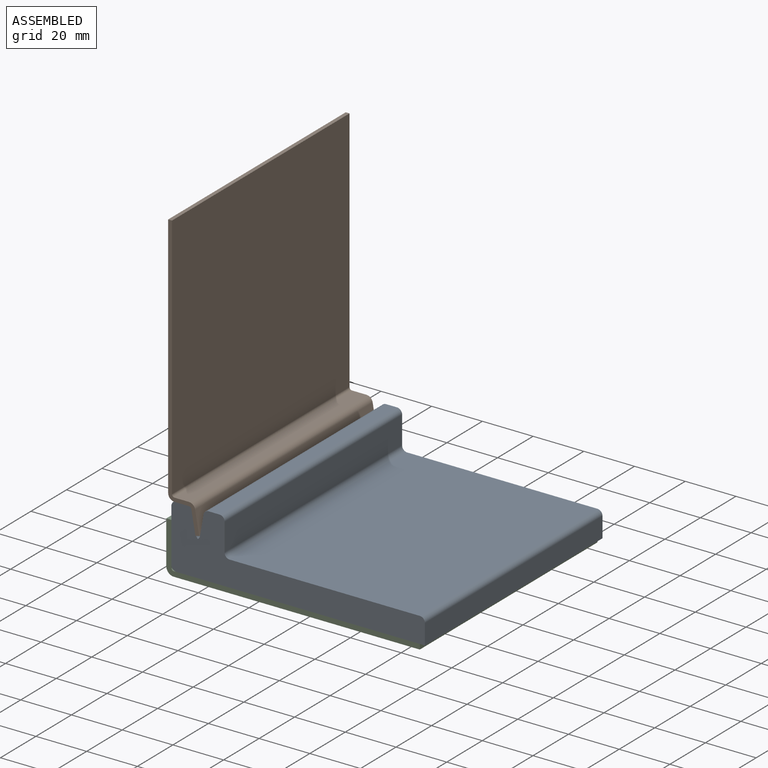
[diagram: assembled view]
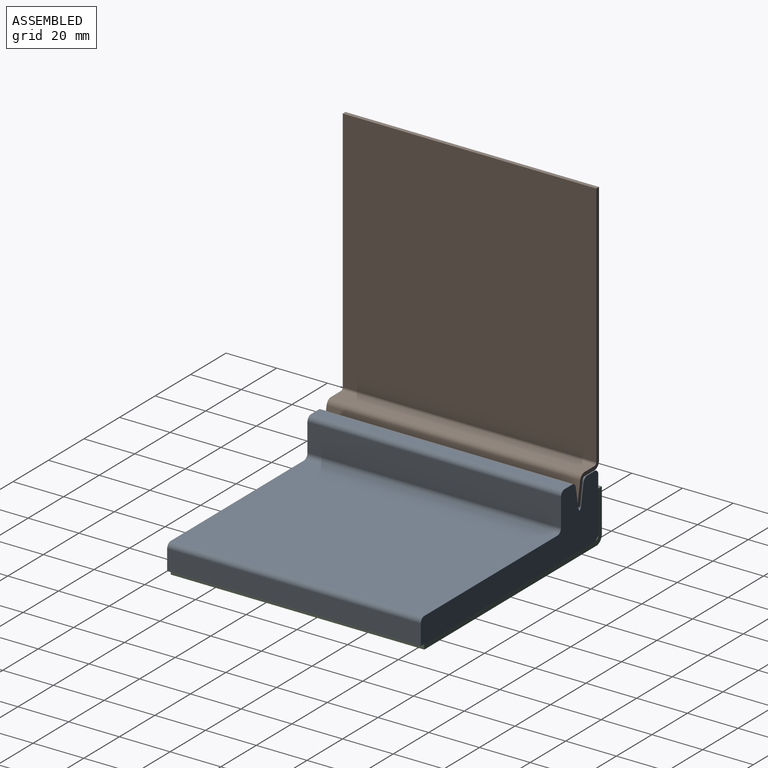
[diagram: assembled view, second angle]
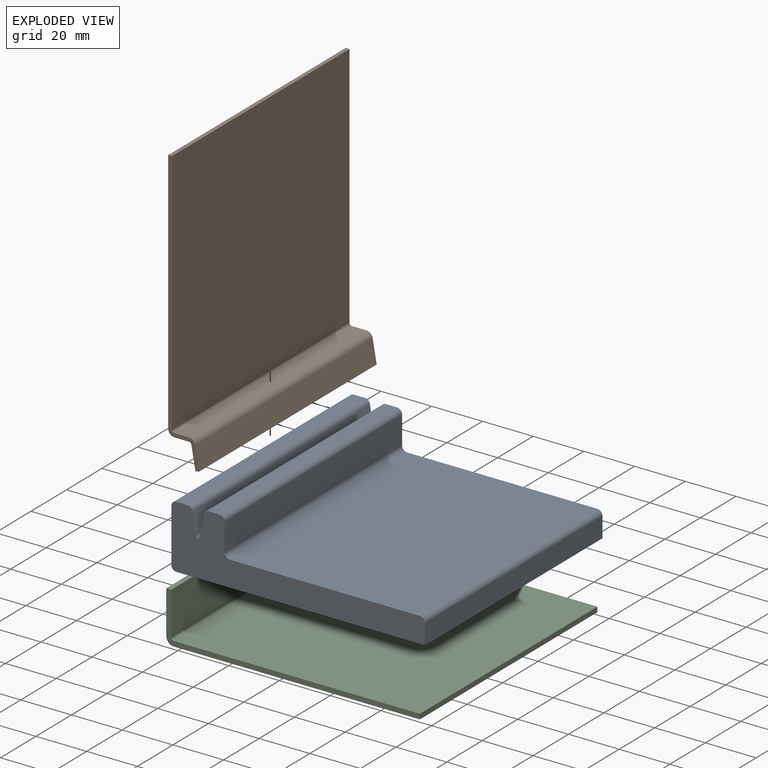
[diagram: exploded view]
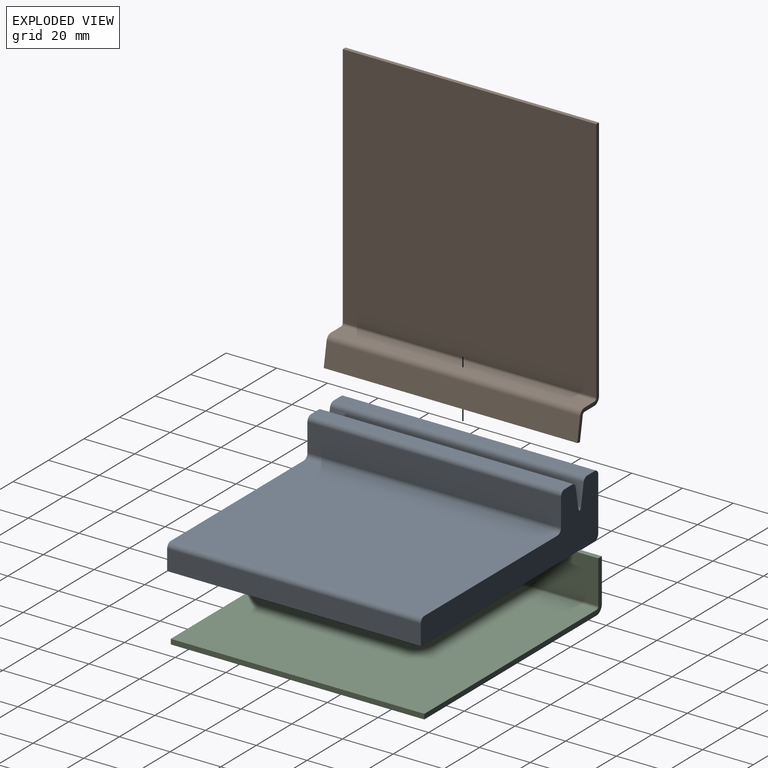
[diagram: exploded view, second angle]
ASSEMBLY  parts=3 mates=3
PART A: 20 faces, bbox 100x100x25 mm
  f0: plane 100x21mm, normal (-1,0,0), area 2100mm2, adj f9,f10,f11,f15
  f1: plane 100x98mm, normal (0,0,-1), area 9800mm2, adj f2,f9,f10,f11
  f2: plane 100x8mm, normal (1,0,0), area 800mm2, adj f1,f9,f10,f12
  f3: plane 100x75mm, normal (0,0,1), area 7500mm2, adj f9,f10,f12,f13
  f4: plane 100x11mm, normal (1,0,0), area 1100mm2, adj f9,f10,f13,f16
  f5: plane 100x4.32mm, normal (0,0,1), area 432.2mm2, adj f9,f10,f16,f17
  f6: plane 100x8.04mm, normal (-0.98,0,0.17), area 816.1mm2, adj f9,f10,f17,f19
  f7: plane 100x8.04mm, normal (0.98,0,0.17), area 816.1mm2, adj f9,f10,f14,f18
  f8: plane 100x4.32mm, normal (0,0,1), area 432.2mm2, adj f9,f10,f14,f15
  f9: plane 100x25mm, normal (0,-1,0), area 1278.1mm2, adj f0,f1,f2,f3,f4,f5,f6,f7
  f10: plane 100x25mm, normal (0,1,0), area 1278.1mm2, adj f0,f1,f2,f3,f4,f5,f6,f7
  f11: cylinder r=2mm len=100mm, axis (0,-1,0), area 314.2mm2, adj f0,f1,f9,f10
  f12: cylinder r=2mm len=100mm, axis (0,-1,0), area 314.2mm2, adj f2,f3,f9,f10
  f13: cylinder r=2mm len=100mm, axis (0,-1,0), area 314.2mm2, adj f3,f4,f9,f10
  f14: cylinder r=2mm len=100mm, axis (0,1,0), area 279.3mm2, adj f7,f8,f9,f10
  f15: cylinder r=2mm len=100mm, axis (0,1,0), area 314.2mm2, adj f0,f8,f9,f10
  f16: cylinder r=2mm len=100mm, axis (0,1,0), area 314.2mm2, adj f4,f5,f9,f10
  f17: cylinder r=2mm len=100mm, axis (0,1,0), area 279.3mm2, adj f5,f6,f9,f10
  f18: cylinder r=2mm len=100mm, axis (0,-1,0), area 153.3mm2, adj f7,f9,f10,f19
  f19: cylinder r=2mm len=100mm, axis (0,-1,0), area 153.3mm2, adj f6,f9,f10,f18
PART B: 22 faces, bbox 12.2x100x109.8 mm
  f0: plane 97.5x1.5mm, normal (0,1,0), area 146.2mm2, adj f1,f3,f4,f19
  f1: plane 100x1.5mm, normal (0,0,1), area 150mm2, adj f0,f2,f3,f4
  f2: plane 97.5x1.5mm, normal (0,-1,0), area 146.2mm2, adj f1,f3,f4,f18
  f3: plane 100x97.5mm, normal (1,0,0), area 9750mm2, adj f0,f1,f2,f21
  f4: plane 100x97.5mm, normal (-1,0,0), area 9750mm2, adj f0,f1,f2,f20
  f5: plane 5.66x1.5mm, normal (0,1,0), area 8.5mm2, adj f7,f8,f15,f19
  f6: plane 5.66x1.5mm, normal (0,-1,0), area 8.5mm2, adj f7,f8,f14,f18
  f7: plane 100x5.66mm, normal (0,0,1), area 566.1mm2, adj f5,f6,f16,f21
  f8: plane 100x5.66mm, normal (0,0,-1), area 566.1mm2, adj f5,f6,f17,f20
  f9: plane 9.28x3.07mm, normal (0,1,0), area 13.7mm2, adj f11,f12,f13,f15
  f10: plane 9.28x3.07mm, normal (0,-1,0), area 13.7mm2, adj f11,f12,f13,f14
  f11: plane 100x1.48mm, normal (0.17,0,-0.98), area 150mm2, adj f9,f10,f12,f13
  f12: plane 100x9.02mm, normal (0.98,0,0.17), area 916.1mm2, adj f9,f10,f11,f16
  f13: plane 100x9.02mm, normal (-0.98,0,-0.17), area 916.1mm2, adj f9,f10,f11,f17
  f14: plane 2.46x2.33mm, normal (0,-1,0), area 3.7mm2, adj f6,f10,f16,f17
  f15: plane 2.46x2.33mm, normal (0,1,0), area 3.7mm2, adj f5,f9,f16,f17
  f16: cylinder r=2.5mm len=100mm, axis (0,-1,0), area 349.1mm2, adj f7,f12,f14,f15
  f17: cylinder r=1mm len=100mm, axis (0,-1,0), area 139.6mm2, adj f8,f13,f14,f15
  f18: plane 2.5x2.5mm, normal (0,-1,0), area 4.1mm2, adj f2,f6,f20,f21
  f19: plane 2.5x2.5mm, normal (0,1,0), area 4.1mm2, adj f0,f5,f20,f21
  f20: cylinder r=2.5mm len=100mm, axis (0,-1,0), area 392.7mm2, adj f4,f8,f18,f19
  f21: cylinder r=1mm len=100mm, axis (0,-1,0), area 157.1mm2, adj f3,f7,f18,f19
PART C: 14 faces, bbox 100x100x20 mm
  f0: plane 17x2mm, normal (0,1,0), area 34mm2, adj f1,f3,f4,f11
  f1: plane 100x2mm, normal (0,0,1), area 200mm2, adj f0,f2,f3,f4
  f2: plane 17x2mm, normal (0,-1,0), area 34mm2, adj f1,f3,f4,f10
  f3: plane 100x17mm, normal (1,0,0), area 1700mm2, adj f0,f1,f2,f13
  f4: plane 100x17mm, normal (-1,0,0), area 1700mm2, adj f0,f1,f2,f12
  f5: plane 97x2mm, normal (0,1,0), area 194mm2, adj f7,f8,f9,f11
  f6: plane 97x2mm, normal (0,-1,0), area 194mm2, adj f7,f8,f9,f10
  f7: plane 100x2mm, normal (1,0,0), area 200mm2, adj f5,f6,f8,f9
  f8: plane 100x97mm, normal (0,0,1), area 9700mm2, adj f5,f6,f7,f13
  f9: plane 100x97mm, normal (0,0,-1), area 9700mm2, adj f5,f6,f7,f12
  f10: plane 3x3mm, normal (0,-1,0), area 6.3mm2, adj f2,f6,f12,f13
  f11: plane 3x3mm, normal (0,1,0), area 6.3mm2, adj f0,f5,f12,f13
  f12: cylinder r=3mm len=100mm, axis (0,-1,0), area 471.2mm2, adj f4,f9,f10,f11
  f13: cylinder r=1mm len=100mm, axis (0,-1,0), area 157.1mm2, adj f3,f8,f10,f11
PLACE A t=(-20.28,56.67,-20.42)mm
PLACE B t=(-21.24,56.27,4.58)mm
PLACE C t=(-22.28,56.67,-22.42)mm fixed
MATE planar A.f1 <-> C.f8  axis (0,0,-1) through (30.72,6.67,-20.42)mm
MATE planar A.f0 <-> C.f3  axis (-1,0,0) through (-20.28,6.67,-7.92)mm
MATE planar B.f8 <-> A.f8  axis (0,0,-1) through (-15.91,6.27,4.58)mm
